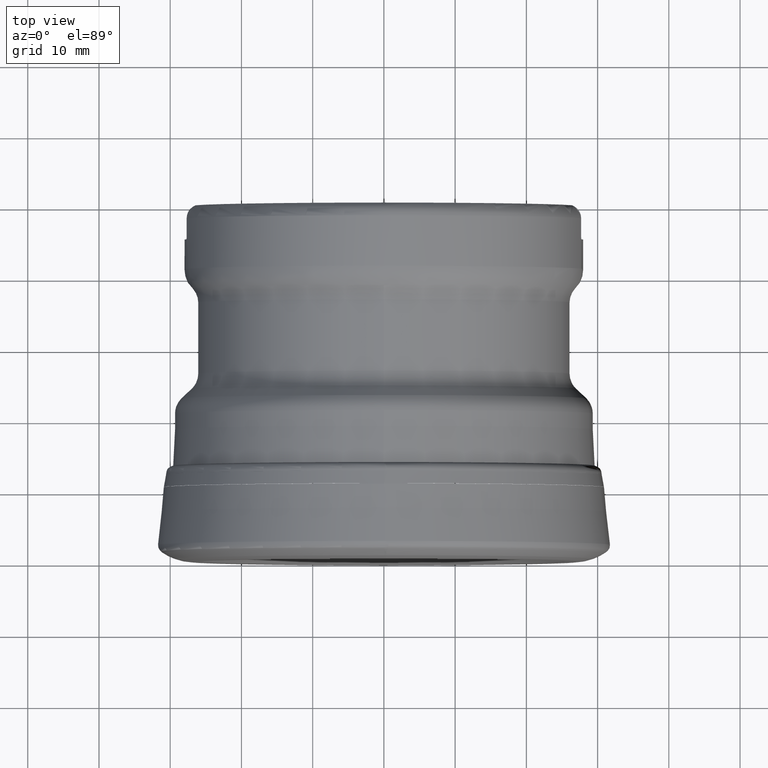
[diagram: clean part render]
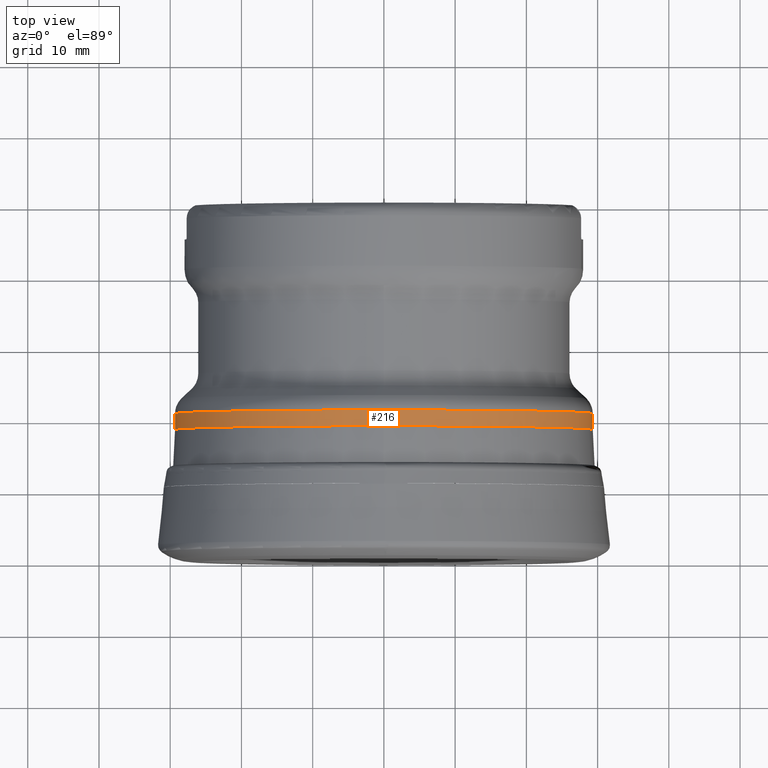
[diagram: same view with one face highlighted and labeled with its STEP entity id]
A machine part, top view. The second image highlights one B-rep face of the part: STEP entity #216.
In plain terms, the highlighted cylindrical surface (bore or boss wall) has radius 29.3183 mm, axis along (0, 1, 0).
Its self-contained STEP definition (entity closure, byte-faithful):
#216=ADVANCED_FACE('',(#403,#404),#285,.T.);
#285=CYLINDRICAL_SURFACE('',#1115,29.3183322357492);
#403=FACE_BOUND('',#499,.T.);
#404=FACE_BOUND('',#500,.T.);
#499=EDGE_LOOP('',(#638));
#500=EDGE_LOOP('',(#639));
#638=ORIENTED_EDGE('',*,*,#953,.T.);
#639=ORIENTED_EDGE('',*,*,#954,.T.);
#860=VERTEX_POINT('',#1642);
#861=VERTEX_POINT('',#1644);
#953=EDGE_CURVE('',#860,#860,#1050,.T.);
#954=EDGE_CURVE('',#861,#861,#1051,.T.);
#1050=CIRCLE('',#1113,29.3183322357492);
#1051=CIRCLE('',#1114,29.3183322357492);
#1113=AXIS2_PLACEMENT_3D('',#1641,#1234,#1235);
#1114=AXIS2_PLACEMENT_3D('',#1643,#1236,#1237);
#1115=AXIS2_PLACEMENT_3D('',#1645,#1238,#1239);
#1234=DIRECTION('',(0.,-1.,0.));
#1235=DIRECTION('',(0.,0.,-1.));
#1236=DIRECTION('',(0.,1.,0.));
#1237=DIRECTION('',(0.,0.,1.));
#1238=DIRECTION('',(0.,1.,0.));
#1239=DIRECTION('',(0.,0.,1.));
#1641=CARTESIAN_POINT('',(0.,20.8390270771285,0.));
#1642=CARTESIAN_POINT('',(0.,20.8390270771285,-29.3183322357492));
#1643=CARTESIAN_POINT('',(0.,18.6203889641489,0.));
#1644=CARTESIAN_POINT('',(0.,18.6203889641489,29.3183322357492));
#1645=CARTESIAN_POINT('',(0.,50.2,0.));